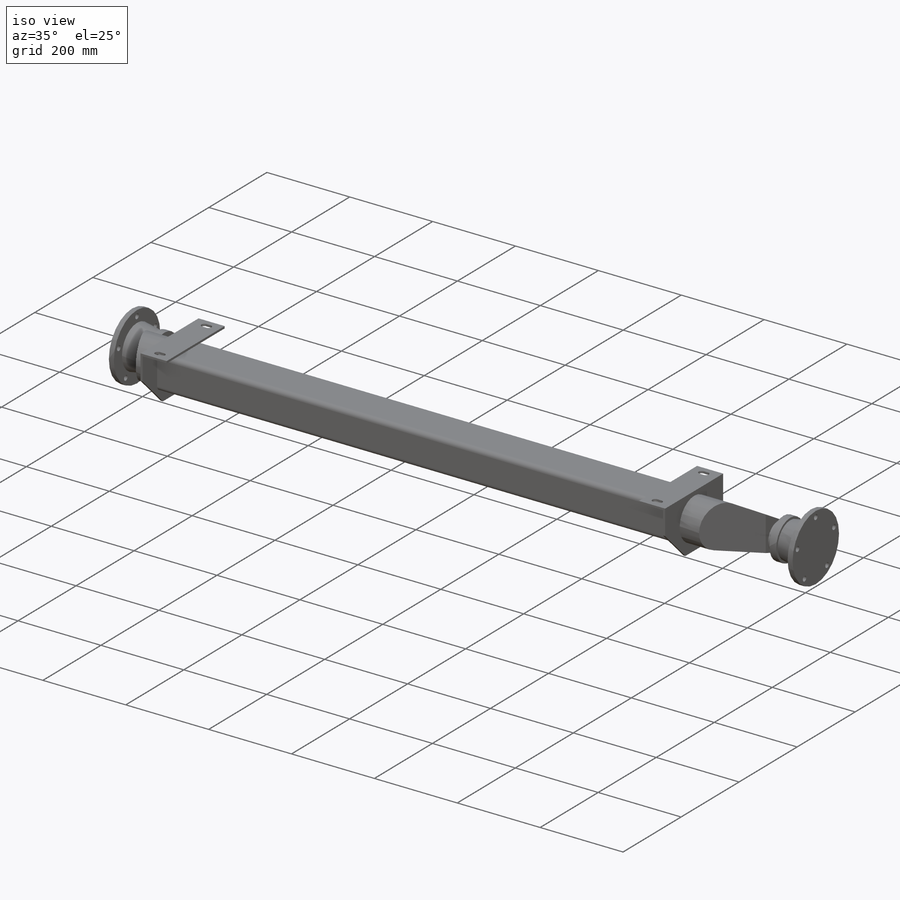
[diagram: iso view]
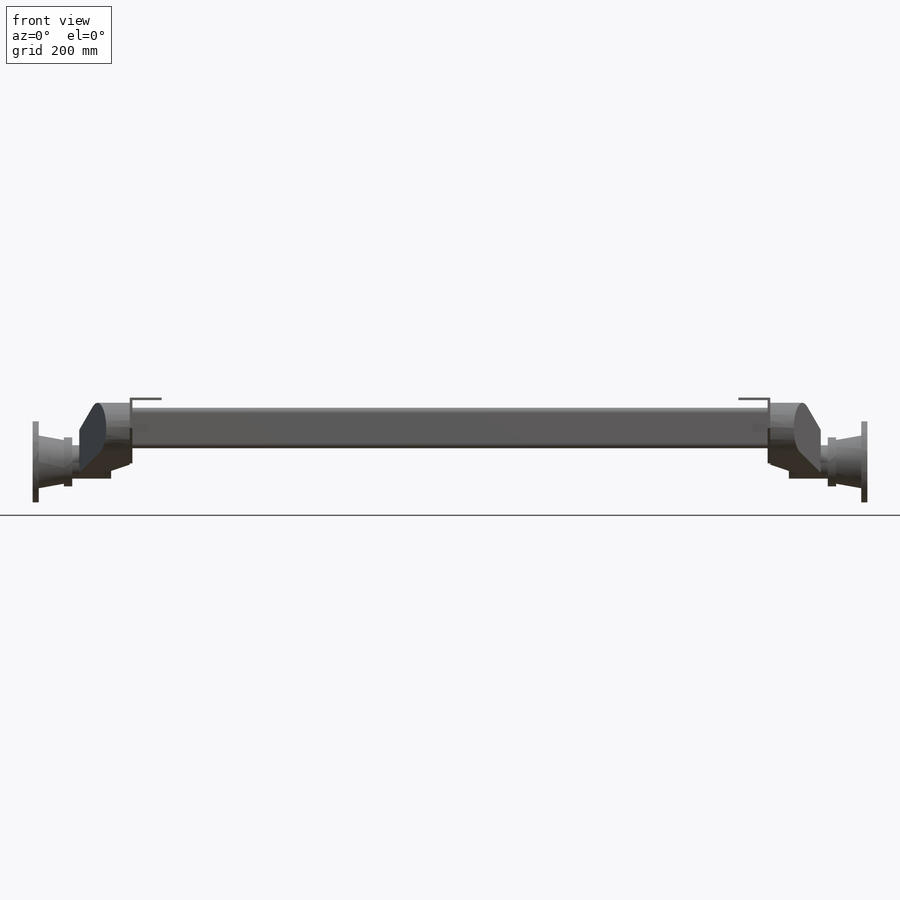
[diagram: front view]
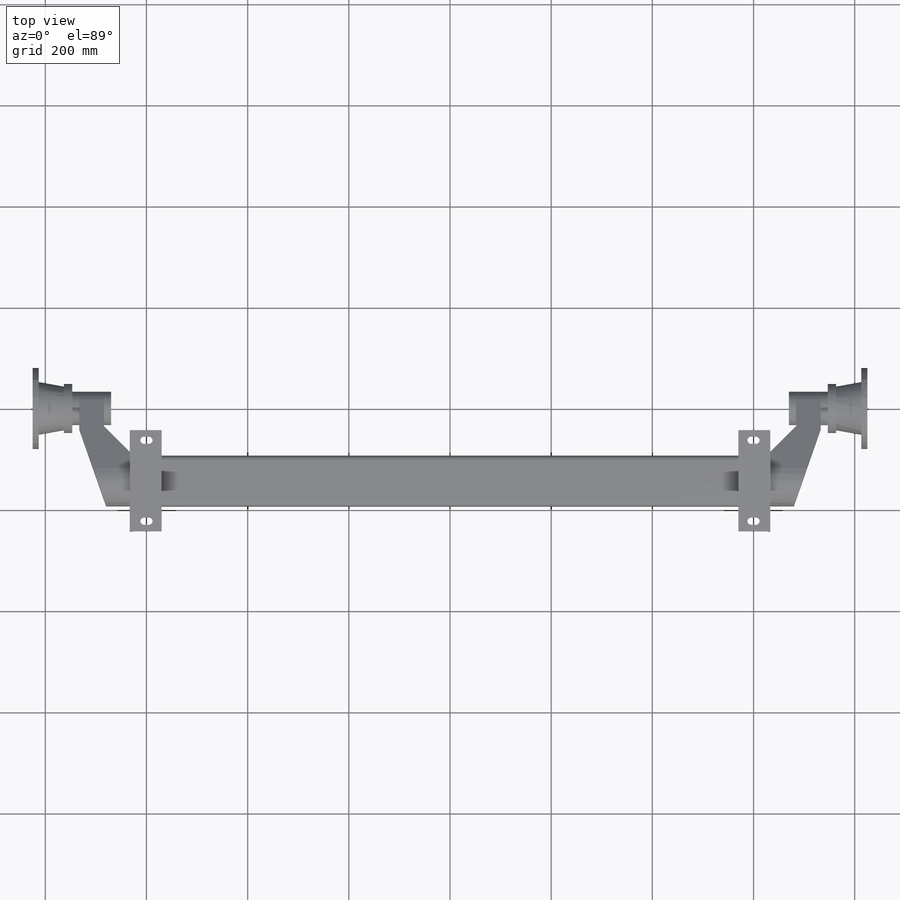
[diagram: top view]
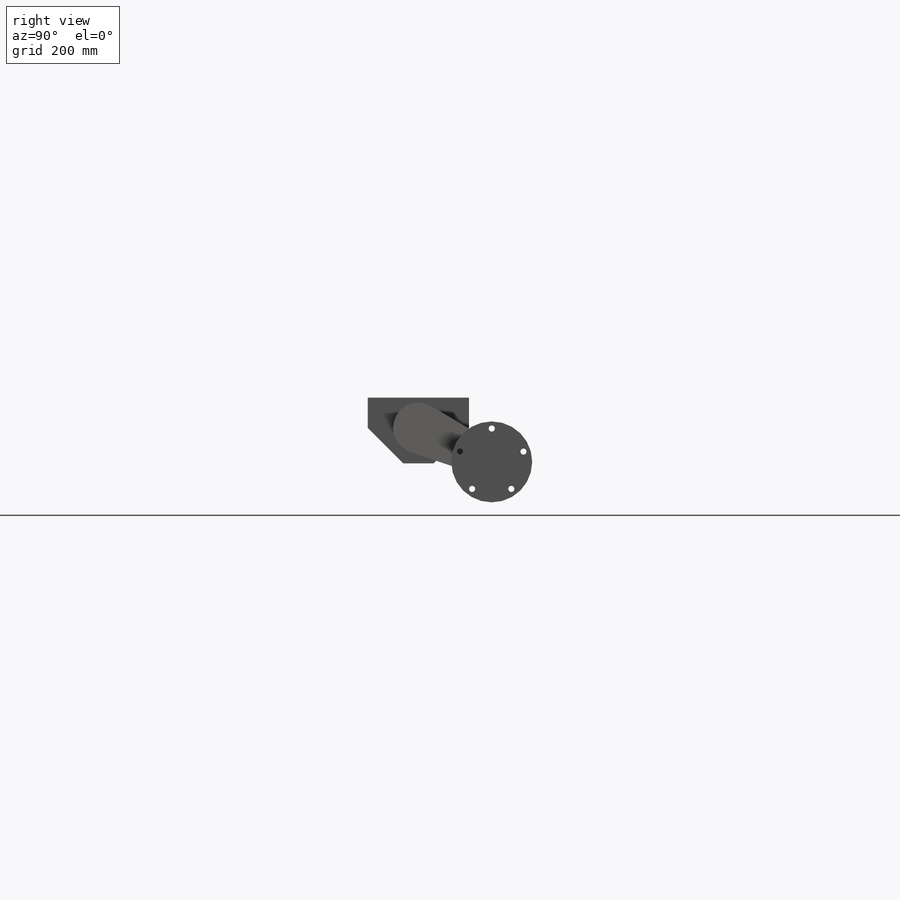
[diagram: right view]
SOLIDWORKS PART (.sldprt)
format: sldprt  version: not decoded by parser v0  size: 392,192 bytes
history: native  units: mm
features: sketch x8, extrude x4, plane x2, cut_extrude x2, material x1, revolve x1, boolean_combine x1, mirror x1 (+11 scaffold rows collapsed)
feature tree (31):
  scaffold x11  (default folders/planes/origin — collapsed)
  material  "Material <not specified>"
  plane  "PlaneFlange"  Offset=825mm
  sketch  "Sketch1"  dims[D1=160.0mm D2=12.0mm D3=670.0mm]
  revolve  "Revolve1"  Angle=360deg
  sketch  "Sketch2"  dims[D1=12.0mm D2=66.0mm D3=5.0]
  cut_extrude  "Cut-Extrude1"  [1 undecoded]
  plane  "PlaneMounting"  Offset=127mm
  sketch  "Sketch4"  dims[D5=10.0mm D1=20.0mm D2=100.0mm D3=100.0mm D4=145.0mm]
  extrude  "Boss-Extrude1"  Depth=633mm
  sketch  "Sketch5"  dims[D1=~59.000062mm D2=130.0mm D3=30.0mm D4=200.0mm]
  extrude  "Boss-Extrude2"  Depth=5mm
  sketch  "Sketch6"  dims[D1=63.0mm D2=10.0mm D3=600.0mm D4=14.0mm D5=80.0mm]
  extrude  "Boss-Extrude3"  Depth=5mm
  sketch  "Sketch7"  dims[D1=50.0mm]
  extrude  "Boss-Extrude4"  Depth=100mm
  sketch  "Sketch8"
  cut_extrude  "Cut-Extrude2"  [1 undecoded]
  boolean_combine  "Combine1"
  mirror  "Mirror4"
  sketch  "Sketch9"
decode coverage: 11 of 17 modeling features carry decoded parameters
note: ~ marks probable driven/reference dimensions
note: 2 parameter values undecoded
note: suppression state not decoded; provenance and decode notes live in map.json
